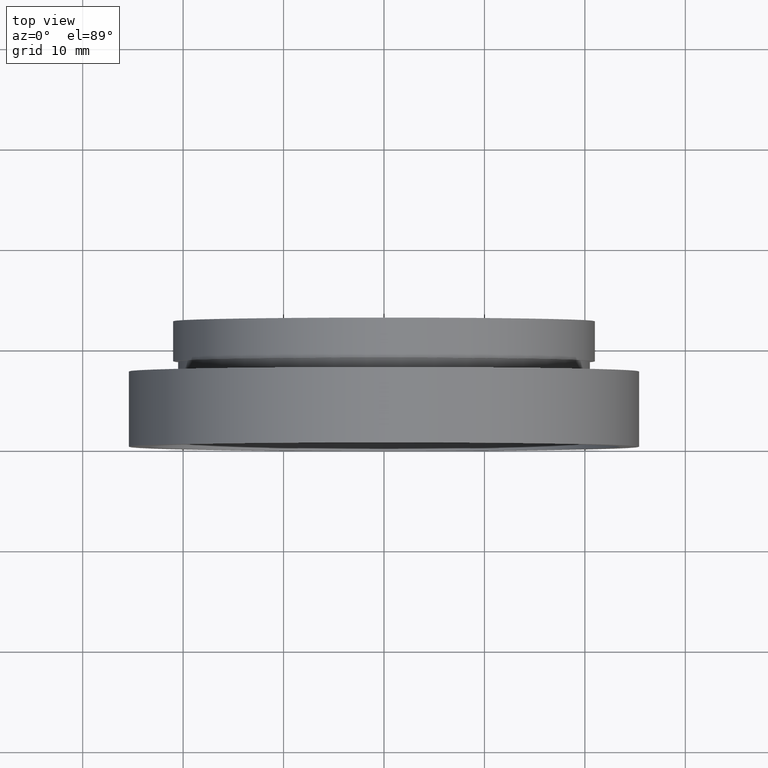
[diagram: clean part render]
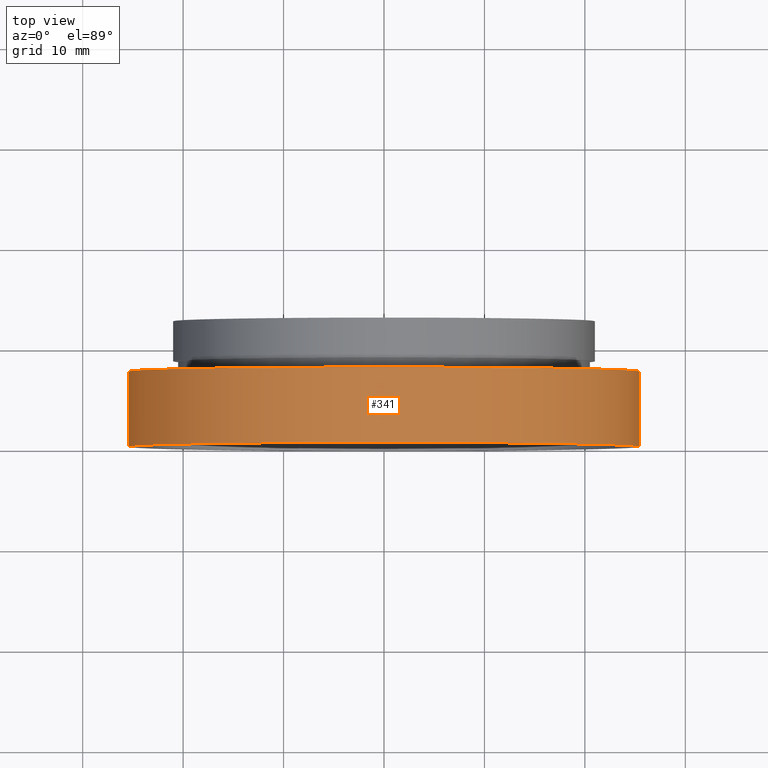
[diagram: same view with one face highlighted and labeled with its STEP entity id]
A machine part, top view. The second image highlights one B-rep face of the part: STEP entity #341.
In plain terms, the highlighted cylindrical surface (partial cylindrical patch) has radius 25.4 mm, axis along (-0, 1, -0).
Its self-contained STEP definition (entity closure, byte-faithful):
#13 = CARTESIAN_POINT ( 'NONE',  ( 0.0000000000000000000, 16.88601823708207700, 0.0000000000000000000 ) ) ;
#23 = EDGE_CURVE ( 'NONE', #596, #617, #610, .T. ) ;
#44 = CARTESIAN_POINT ( 'NONE',  ( -25.39999999999999900, 16.88601823708207300, 0.0000000000000000000 ) ) ;
#51 = DIRECTION ( 'NONE',  ( -1.224646799147351000E-016, 1.000000000000000000, -0.0000000000000000000 ) ) ;
#89 = VERTEX_POINT ( 'NONE', #365 ) ;
#91 = DIRECTION ( 'NONE',  ( -1.000000000000000000, -1.365923996832131600E-016, 0.0000000000000000000 ) ) ;
#93 = EDGE_CURVE ( 'NONE', #89, #461, #336, .T. ) ;
#112 = ORIENTED_EDGE ( 'NONE', *, *, #93, .T. ) ;
#135 = DIRECTION ( 'NONE',  ( -1.000000000000000000, -1.365923996832131600E-016, 0.0000000000000000000 ) ) ;
#207 = CARTESIAN_POINT ( 'NONE',  ( 1.149455719078123100E-015, 7.499999999999996400, 0.0000000000000000000 ) ) ;
#253 = EDGE_LOOP ( 'NONE', ( #504, #112, #286, #374 ) ) ;
#262 = DIRECTION ( 'NONE',  ( -1.224646799147351000E-016, 1.000000000000000000, -0.0000000000000000000 ) ) ;
#272 = CARTESIAN_POINT ( 'NONE',  ( 25.39999999999999900, 7.500000000000000000, 3.110602869834276900E-015 ) ) ;
#286 = ORIENTED_EDGE ( 'NONE', *, *, #397, .F. ) ;
#311 = CARTESIAN_POINT ( 'NONE',  ( 25.39999999999999900, 16.88601823708208000, 3.110602869834276900E-015 ) ) ;
#321 = CIRCLE ( 'NONE', #377, 25.39999999999999900 ) ;
#334 = EDGE_CURVE ( 'NONE', #596, #89, #513, .T. ) ;
#336 = LINE ( 'NONE', #311, #356 ) ;
#341 = ADVANCED_FACE ( 'NONE', ( #503 ), #462, .T. ) ;
#352 = DIRECTION ( 'NONE',  ( -1.000000000000000000, -1.224646799147351000E-016, 0.0000000000000000000 ) ) ;
#356 = VECTOR ( 'NONE', #262, 1000.000000000000000 ) ;
#357 = AXIS2_PLACEMENT_3D ( 'NONE', #545, #381, #352 ) ;
#365 = CARTESIAN_POINT ( 'NONE',  ( 25.39999999999999900, -3.588440821193433400E-016, 3.110602869834276900E-015 ) ) ;
#374 = ORIENTED_EDGE ( 'NONE', *, *, #23, .F. ) ;
#377 = AXIS2_PLACEMENT_3D ( 'NONE', #207, #593, #135 ) ;
#381 = DIRECTION ( 'NONE',  ( -1.224646799147351000E-016, 1.000000000000000000, -0.0000000000000000000 ) ) ;
#390 = DIRECTION ( 'NONE',  ( -1.224646799147351000E-016, 1.000000000000000000, -0.0000000000000000000 ) ) ;
#397 = EDGE_CURVE ( 'NONE', #617, #461, #321, .T. ) ;
#461 = VERTEX_POINT ( 'NONE', #272 ) ;
#462 = CYLINDRICAL_SURFACE ( 'NONE', #516, 25.39999999999999900 ) ;
#487 = CARTESIAN_POINT ( 'NONE',  ( -25.39999999999999100, -6.580049821787884700E-015, 0.0000000000000000000 ) ) ;
#503 = FACE_OUTER_BOUND ( 'NONE', #253, .T. ) ;
#504 = ORIENTED_EDGE ( 'NONE', *, *, #334, .T. ) ;
#513 = CIRCLE ( 'NONE', #357, 25.39999999999999500 ) ;
#516 = AXIS2_PLACEMENT_3D ( 'NONE', #13, #390, #91 ) ;
#519 = VECTOR ( 'NONE', #51, 1000.000000000000000 ) ;
#537 = CARTESIAN_POINT ( 'NONE',  ( -25.39999999999999900, 7.499999999999992900, 0.0000000000000000000 ) ) ;
#545 = CARTESIAN_POINT ( 'NONE',  ( 2.067940818438636500E-015, -3.469446951953614200E-015, 0.0000000000000000000 ) ) ;
#593 = DIRECTION ( 'NONE',  ( -1.224646799147351000E-016, 1.000000000000000000, -0.0000000000000000000 ) ) ;
#596 = VERTEX_POINT ( 'NONE', #487 ) ;
#610 = LINE ( 'NONE', #44, #519 ) ;
#617 = VERTEX_POINT ( 'NONE', #537 ) ;